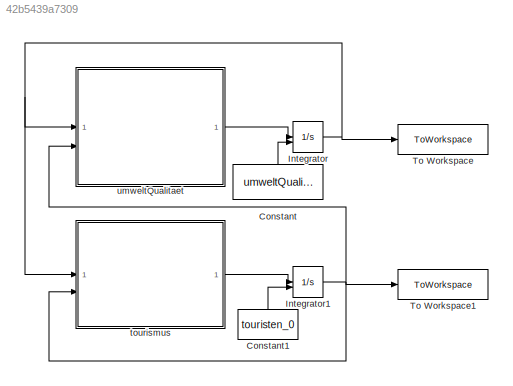
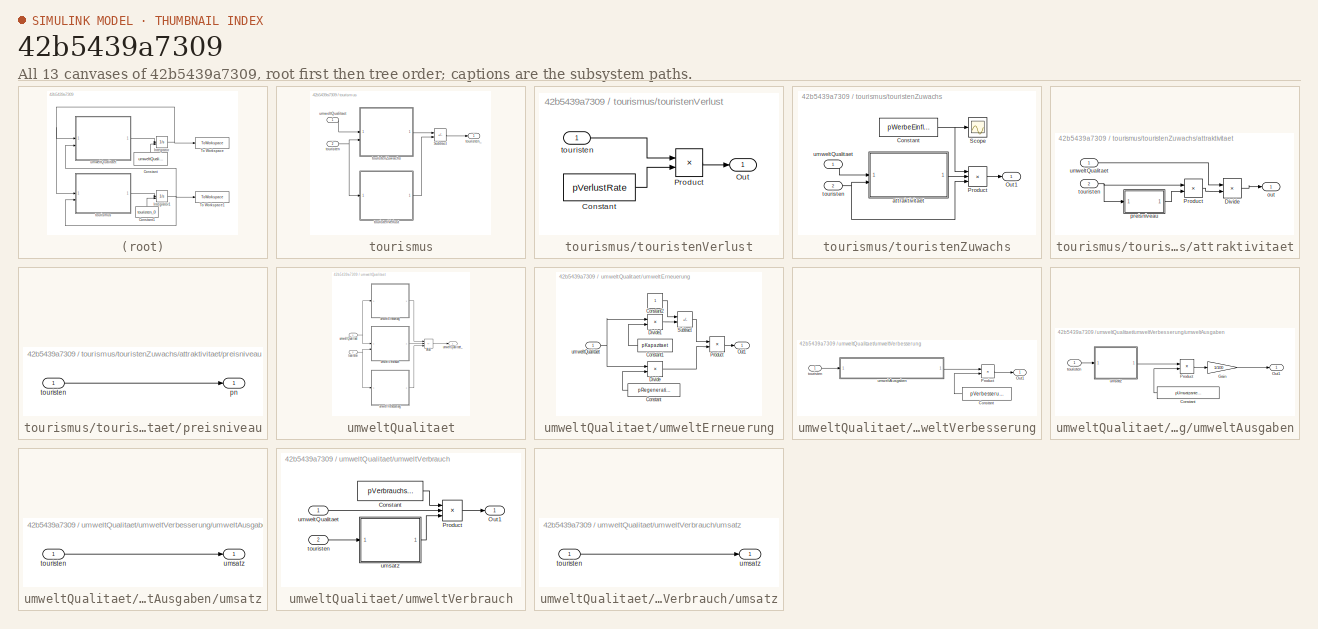
[diagram: thumbnail index - all 13 canvases of the model, root first then tree order]
MODEL slx_42b5439a7309
KIND model
CONFIG AbsTol = auto
CONFIG EnableMultiTasking = off
CONFIG FixedStep = auto
CONFIG MaxStep = timeStep
CONFIG MinStep = auto
CONFIG RelTol = 1e-3
CONFIG SampleTimeConstraint = Unconstrained
CONFIG SolverName = VariableStepAuto
CONFIG StartTime = 0.0
CONFIG StopTime = timeFinal
BLOCK [Constant] Constant
  NameLocation = right
  Value = umweltQualitaet_0
BLOCK [Constant] Constant1
  NameLocation = right
  Value = touristen_0
BLOCK [Integrator] Integrator
  InitialCondition = 1
  InitialConditionSource = external
BLOCK [Integrator] Integrator1
  InitialCondition = 0.1
  InitialConditionSource = external
BLOCK [ToWorkspace] To Workspace
  FixptAsFi = on
  MaxDataPoints = inf
  SampleTime = -1
  SaveFormat = Timeseries
  VariableName = umweltQualitaet
BLOCK [ToWorkspace] To Workspace1
  FixptAsFi = on
  MaxDataPoints = inf
  SampleTime = -1
  SaveFormat = Timeseries
  VariableName = touristen
BLOCK [SubSystem] tourismus
BLOCK [Sum] tourismus/Subtract
  IconShape = rectangular
  Inputs = +-
BLOCK [Inport] tourismus/touristen
  Port = 2
BLOCK [SubSystem] tourismus/touristenVerlust
BLOCK [Constant] tourismus/touristenVerlust/Constant
  Value = pVerlustRate
BLOCK [Outport] tourismus/touristenVerlust/Out
BLOCK [Product] tourismus/touristenVerlust/Product
BLOCK [Inport] tourismus/touristenVerlust/touristen
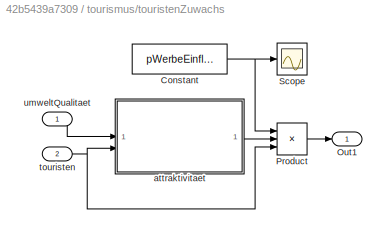
BLOCK [SubSystem] tourismus/touristenZuwachs
BLOCK [Constant] tourismus/touristenZuwachs/Constant
  Value = pWerbeEinfluss
BLOCK [Outport] tourismus/touristenZuwachs/Out1
BLOCK [Product] tourismus/touristenZuwachs/Product
  Inputs = 3
BLOCK [Scope] tourismus/touristenZuwachs/Scope
  Floating = off
  NumInputPorts = 1
  ScopeSpecificationString = Simulink.scopes.TimeScopeBlockCfg('CurrentConfiguration', extmgr.ConfigurationSet(extmgr.Configuration('Core','General UI',true),extmgr.Configuration('Core','Source UI',true),extmgr.Configuration('Sources','WiredSimulink',true),extmgr.Configuration('Visuals','Time Domain',true,'SerializedDisplays',{struct('MinYLimReal','-0.625','MaxYLimReal','5.625','YLabelReal','','MinYLimMag','0.00000','MaxYLimM...<+1354ch>
BLOCK [SubSystem] tourismus/touristenZuwachs/attraktivitaet
BLOCK [Product] tourismus/touristenZuwachs/attraktivitaet/Divide
  Inputs = */
BLOCK [Product] tourismus/touristenZuwachs/attraktivitaet/Product
BLOCK [Outport] tourismus/touristenZuwachs/attraktivitaet/out
BLOCK [SubSystem] tourismus/touristenZuwachs/attraktivitaet/preisniveau
BLOCK [Outport] tourismus/touristenZuwachs/attraktivitaet/preisniveau/pn
BLOCK [Inport] tourismus/touristenZuwachs/attraktivitaet/preisniveau/touristen
BLOCK [Inport] tourismus/touristenZuwachs/attraktivitaet/touristen
  Port = 2
BLOCK [Inport] tourismus/touristenZuwachs/attraktivitaet/umweltQualitaet
BLOCK [Inport] tourismus/touristenZuwachs/touristen
  Port = 2
BLOCK [Inport] tourismus/touristenZuwachs/umweltQualitaet
BLOCK [Outport] tourismus/touristen_
BLOCK [Inport] tourismus/umweltQualitaet
BLOCK [SubSystem] umweltQualitaet
BLOCK [Sum] umweltQualitaet/Add
  IconShape = rectangular
  Inputs = +-+
BLOCK [Inport] umweltQualitaet/touristen
  Port = 2
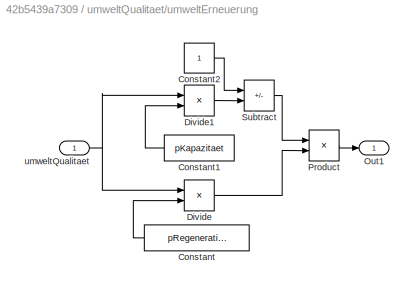
BLOCK [SubSystem] umweltQualitaet/umweltErneuerung
BLOCK [Constant] umweltQualitaet/umweltErneuerung/Constant
  NameLocation = top
  Value = pRegenerationsZeit
BLOCK [Constant] umweltQualitaet/umweltErneuerung/Constant1
  NameLocation = top
  Value = pKapazitaet
BLOCK [Constant] umweltQualitaet/umweltErneuerung/Constant2
BLOCK [Product] umweltQualitaet/umweltErneuerung/Divide
  Inputs = */
BLOCK [Product] umweltQualitaet/umweltErneuerung/Divide1
  Inputs = */
BLOCK [Outport] umweltQualitaet/umweltErneuerung/Out1
BLOCK [Product] umweltQualitaet/umweltErneuerung/Product
BLOCK [Sum] umweltQualitaet/umweltErneuerung/Subtract
  IconShape = rectangular
  Inputs = +-
BLOCK [Inport] umweltQualitaet/umweltErneuerung/umweltQualitaet
BLOCK [Inport] umweltQualitaet/umweltQualitaet
BLOCK [Outport] umweltQualitaet/umweltQualitaet_
BLOCK [SubSystem] umweltQualitaet/umweltVerbesserung
BLOCK [Constant] umweltQualitaet/umweltVerbesserung/Constant
  NameLocation = top
  Value = pVerbesserungsRate
BLOCK [Outport] umweltQualitaet/umweltVerbesserung/Out1
BLOCK [Product] umweltQualitaet/umweltVerbesserung/Product
BLOCK [Inport] umweltQualitaet/umweltVerbesserung/touristen
BLOCK [SubSystem] umweltQualitaet/umweltVerbesserung/umweltAusgaben
BLOCK [Constant] umweltQualitaet/umweltVerbesserung/umweltAusgaben/Constant
  NameLocation = top
  Value = pUmsatzanteilFuerUmwelt
BLOCK [Gain] umweltQualitaet/umweltVerbesserung/umweltAusgaben/Gain
  Gain = 1/100
BLOCK [Outport] umweltQualitaet/umweltVerbesserung/umweltAusgaben/Out1
BLOCK [Product] umweltQualitaet/umweltVerbesserung/umweltAusgaben/Product
BLOCK [Inport] umweltQualitaet/umweltVerbesserung/umweltAusgaben/touristen
BLOCK [SubSystem] umweltQualitaet/umweltVerbesserung/umweltAusgaben/umsatz
BLOCK [Inport] umweltQualitaet/umweltVerbesserung/umweltAusgaben/umsatz/touristen
BLOCK [Outport] umweltQualitaet/umweltVerbesserung/umweltAusgaben/umsatz/umsatz
BLOCK [SubSystem] umweltQualitaet/umweltVerbrauch
BLOCK [Constant] umweltQualitaet/umweltVerbrauch/Constant
  Value = pVerbrauchsRate
BLOCK [Outport] umweltQualitaet/umweltVerbrauch/Out1
BLOCK [Product] umweltQualitaet/umweltVerbrauch/Product
  Inputs = 3
BLOCK [Inport] umweltQualitaet/umweltVerbrauch/touristen
  Port = 2
BLOCK [SubSystem] umweltQualitaet/umweltVerbrauch/umsatz
BLOCK [Inport] umweltQualitaet/umweltVerbrauch/umsatz/touristen
BLOCK [Outport] umweltQualitaet/umweltVerbrauch/umsatz/umsatz
BLOCK [Inport] umweltQualitaet/umweltVerbrauch/umweltQualitaet
LINE Constant1:1 -> Integrator1:2
LINE Constant:1 -> Integrator:2
NET Integrator1:1 -> To Workspace1:1, tourismus:2, umweltQualitaet:2
NET Integrator:1 -> To Workspace:1, tourismus:1, umweltQualitaet:1
LINE tourismus/Subtract:1 -> tourismus/touristen_:1
NET tourismus/touristen:1 -> tourismus/touristenVerlust:1, tourismus/touristenZuwachs:2
LINE tourismus/touristenVerlust/Constant:1 -> tourismus/touristenVerlust/Product:2
LINE tourismus/touristenVerlust/Product:1 -> tourismus/touristenVerlust/Out:1
LINE tourismus/touristenVerlust/touristen:1 -> tourismus/touristenVerlust/Product:1
LINE tourismus/touristenVerlust:1 -> tourismus/Subtract:2
NET tourismus/touristenZuwachs/Constant:1 -> tourismus/touristenZuwachs/Product:1, tourismus/touristenZuwachs/Scope:1
LINE tourismus/touristenZuwachs/Product:1 -> tourismus/touristenZuwachs/Out1:1
LINE tourismus/touristenZuwachs/attraktivitaet/Divide:1 -> tourismus/touristenZuwachs/attraktivitaet/out:1
LINE tourismus/touristenZuwachs/attraktivitaet/Product:1 -> tourismus/touristenZuwachs/attraktivitaet/Divide:2
LINE tourismus/touristenZuwachs/attraktivitaet/preisniveau/touristen:1 -> tourismus/touristenZuwachs/attraktivitaet/preisniveau/pn:1
LINE tourismus/touristenZuwachs/attraktivitaet/preisniveau:1 -> tourismus/touristenZuwachs/attraktivitaet/Product:2
NET tourismus/touristenZuwachs/attraktivitaet/touristen:1 -> tourismus/touristenZuwachs/attraktivitaet/Product:1, tourismus/touristenZuwachs/attraktivitaet/preisniveau:1
LINE tourismus/touristenZuwachs/attraktivitaet/umweltQualitaet:1 -> tourismus/touristenZuwachs/attraktivitaet/Divide:1
LINE tourismus/touristenZuwachs/attraktivitaet:1 -> tourismus/touristenZuwachs/Product:2
NET tourismus/touristenZuwachs/touristen:1 -> tourismus/touristenZuwachs/Product:3, tourismus/touristenZuwachs/attraktivitaet:2
LINE tourismus/touristenZuwachs/umweltQualitaet:1 -> tourismus/touristenZuwachs/attraktivitaet:1
LINE tourismus/touristenZuwachs:1 -> tourismus/Subtract:1
LINE tourismus/umweltQualitaet:1 -> tourismus/touristenZuwachs:1
LINE tourismus:1 -> Integrator1:1
LINE umweltQualitaet/Add:1 -> umweltQualitaet/umweltQualitaet_:1
NET umweltQualitaet/touristen:1 -> umweltQualitaet/umweltVerbesserung:1, umweltQualitaet/umweltVerbrauch:2
LINE umweltQualitaet/umweltErneuerung/Constant1:1 -> umweltQualitaet/umweltErneuerung/Divide1:2
LINE umweltQualitaet/umweltErneuerung/Constant2:1 -> umweltQualitaet/umweltErneuerung/Subtract:1
LINE umweltQualitaet/umweltErneuerung/Constant:1 -> umweltQualitaet/umweltErneuerung/Divide:2
LINE umweltQualitaet/umweltErneuerung/Divide1:1 -> umweltQualitaet/umweltErneuerung/Subtract:2
LINE umweltQualitaet/umweltErneuerung/Divide:1 -> umweltQualitaet/umweltErneuerung/Product:2
LINE umweltQualitaet/umweltErneuerung/Product:1 -> umweltQualitaet/umweltErneuerung/Out1:1
LINE umweltQualitaet/umweltErneuerung/Subtract:1 -> umweltQualitaet/umweltErneuerung/Product:1
NET umweltQualitaet/umweltErneuerung/umweltQualitaet:1 -> umweltQualitaet/umweltErneuerung/Divide1:1, umweltQualitaet/umweltErneuerung/Divide:1
LINE umweltQualitaet/umweltErneuerung:1 -> umweltQualitaet/Add:1
NET umweltQualitaet/umweltQualitaet:1 -> umweltQualitaet/umweltErneuerung:1, umweltQualitaet/umweltVerbrauch:1
LINE umweltQualitaet/umweltVerbesserung/Constant:1 -> umweltQualitaet/umweltVerbesserung/Product:2
LINE umweltQualitaet/umweltVerbesserung/Product:1 -> umweltQualitaet/umweltVerbesserung/Out1:1
LINE umweltQualitaet/umweltVerbesserung/touristen:1 -> umweltQualitaet/umweltVerbesserung/umweltAusgaben:1
LINE umweltQualitaet/umweltVerbesserung/umweltAusgaben/Constant:1 -> umweltQualitaet/umweltVerbesserung/umweltAusgaben/Product:2
LINE umweltQualitaet/umweltVerbesserung/umweltAusgaben/Gain:1 -> umweltQualitaet/umweltVerbesserung/umweltAusgaben/Out1:1
LINE umweltQualitaet/umweltVerbesserung/umweltAusgaben/Product:1 -> umweltQualitaet/umweltVerbesserung/umweltAusgaben/Gain:1
LINE umweltQualitaet/umweltVerbesserung/umweltAusgaben/touristen:1 -> umweltQualitaet/umweltVerbesserung/umweltAusgaben/umsatz:1
LINE umweltQualitaet/umweltVerbesserung/umweltAusgaben/umsatz/touristen:1 -> umweltQualitaet/umweltVerbesserung/umweltAusgaben/umsatz/umsatz:1
LINE umweltQualitaet/umweltVerbesserung/umweltAusgaben/umsatz:1 -> umweltQualitaet/umweltVerbesserung/umweltAusgaben/Product:1
LINE umweltQualitaet/umweltVerbesserung/umweltAusgaben:1 -> umweltQualitaet/umweltVerbesserung/Product:1
LINE umweltQualitaet/umweltVerbesserung:1 -> umweltQualitaet/Add:3
LINE umweltQualitaet/umweltVerbrauch/Constant:1 -> umweltQualitaet/umweltVerbrauch/Product:1
LINE umweltQualitaet/umweltVerbrauch/Product:1 -> umweltQualitaet/umweltVerbrauch/Out1:1
LINE umweltQualitaet/umweltVerbrauch/touristen:1 -> umweltQualitaet/umweltVerbrauch/umsatz:1
LINE umweltQualitaet/umweltVerbrauch/umsatz/touristen:1 -> umweltQualitaet/umweltVerbrauch/umsatz/umsatz:1
LINE umweltQualitaet/umweltVerbrauch/umsatz:1 -> umweltQualitaet/umweltVerbrauch/Product:3
LINE umweltQualitaet/umweltVerbrauch/umweltQualitaet:1 -> umweltQualitaet/umweltVerbrauch/Product:2
LINE umweltQualitaet/umweltVerbrauch:1 -> umweltQualitaet/Add:2
LINE umweltQualitaet:1 -> Integrator:1
note: NET lines group one-source signal fan-out (src -> all destinations, sorted); 1:1 wires keep LINE
